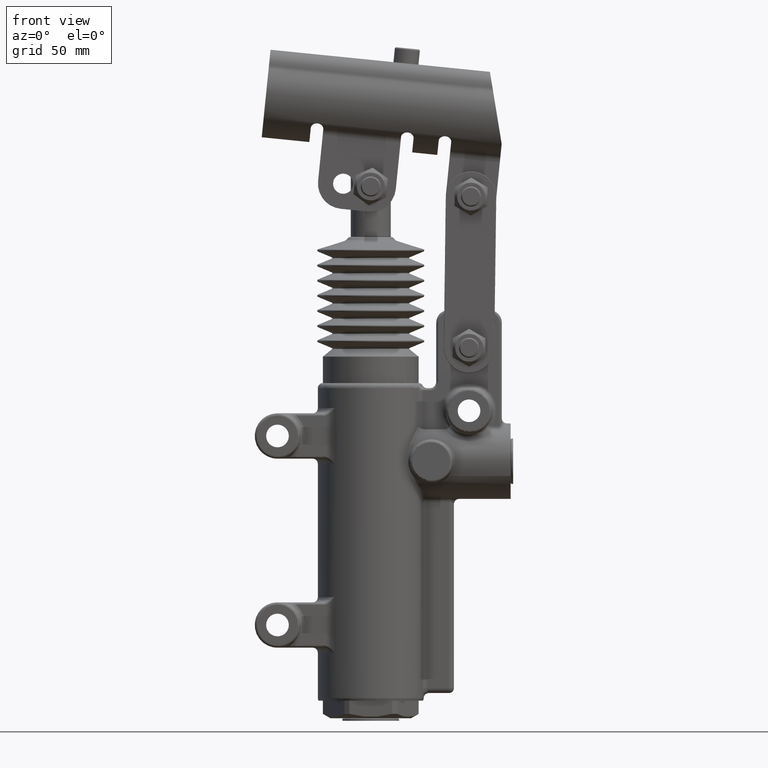
[diagram: clean part render]
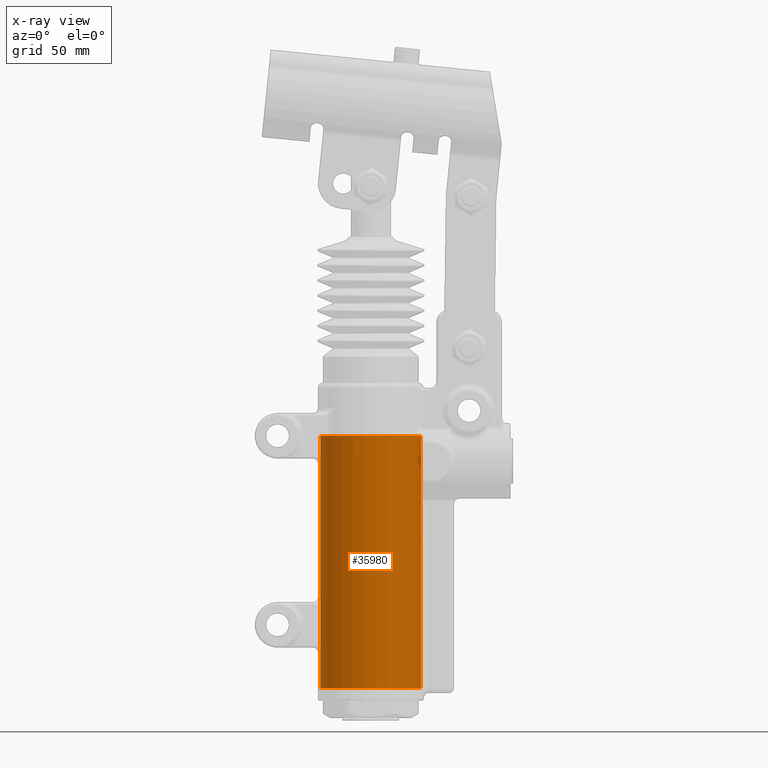
[diagram: x-ray — body ghosted, one internal face saturated and labeled with its STEP entity id]
A machine part, front view, then the same camera in x-ray: the body is ghosted and one INTERNAL B-rep face — a face not visible from any outside direction — is saturated and labeled: STEP entity #35980.
In plain terms, the highlighted cylindrical surface (bore or boss wall) has radius 20 mm, axis along (0, 0, -1).
Its self-contained STEP definition (entity closure, byte-faithful):
#35816=CARTESIAN_POINT('',(0.0,0.0,106.00000000000001));
#35817=DIRECTION('',(0.0,0.0,-1.0));
#35818=DIRECTION('',(1.0,0.0,0.0));
#35819=AXIS2_PLACEMENT_3D('',#35816,#35817,#35818);
#35820=CYLINDRICAL_SURFACE('',#35819,19.999999999999996);
#35821=CARTESIAN_POINT('',(-19.999999999999996,2.449294E-015,6.000000000000014));
#35822=VERTEX_POINT('',#35821);
#35823=CARTESIAN_POINT('',(0.0,0.0,6.000000000000014));
#35824=DIRECTION('',(0.0,0.0,-1.0));
#35825=DIRECTION('',(1.0,0.0,0.0));
#35826=AXIS2_PLACEMENT_3D('',#35823,#35824,#35825);
#35827=CIRCLE('',#35826,19.999999999999996);
#35828=EDGE_CURVE('',#35822,#35822,#35827,.T.);
#35829=ORIENTED_EDGE('',*,*,#35828,.T.);
#35830=EDGE_LOOP('',(#35829));
#35831=FACE_OUTER_BOUND('',#35830,.T.);
#35832=CARTESIAN_POINT('',(19.928640593644044,1.687982253864854,15.999999999999996));
#35833=VERTEX_POINT('',#35832);
#35834=CARTESIAN_POINT('',(19.928640593644044,1.687982253864854,23.000000000000007));
#35835=VERTEX_POINT('',#35834);
#35836=CARTESIAN_POINT('',(19.928640593644044,1.687982253864855,16.0));
#35837=DIRECTION('',(0.0,0.0,1.0));
#35838=VECTOR('',#35837,7.000000000000014);
#35839=LINE('',#35836,#35838);
#35840=EDGE_CURVE('',#35833,#35835,#35839,.T.);
#35841=ORIENTED_EDGE('',*,*,#35840,.F.);
#35842=CARTESIAN_POINT('',(19.811849500370659,2.73689959162967,15.0));
#35843=VERTEX_POINT('',#35842);
#35844=CARTESIAN_POINT('',(19.811849500370659,2.736899591629671,14.999999999999998));
#35845=CARTESIAN_POINT('',(19.829993222497915,2.605560943598487,15.0));
#35846=CARTESIAN_POINT('',(19.847953084231403,2.464940416124008,15.02548096789382));
#35847=CARTESIAN_POINT('',(19.878549440414993,2.204641702145498,15.12965323872862));
#35848=CARTESIAN_POINT('',(19.89125418640333,2.084974640357284,15.208352281640657));
#35849=CARTESIAN_POINT('',(19.909735388268345,1.900154675538171,15.387392436961449));
#35850=CARTESIAN_POINT('',(19.917021503706401,1.82073957048434,15.497885988396343));
#35851=CARTESIAN_POINT('',(19.926438698375495,1.714607530595788,15.741472535941892));
#35852=CARTESIAN_POINT('',(19.92864059364404,1.687982253864852,15.874602715031386));
#35853=CARTESIAN_POINT('',(19.92864059364404,1.68798225386485,15.999999999999996));
#35854=B_SPLINE_CURVE_WITH_KNOTS('',3,(#35844,#35845,#35846,#35847,#35848,#35849,#35850,#35851,#35852,#35853),.UNSPECIFIED.,.F.,.U.,(4,2,2,2,4),(0.153682060028716,0.193457846139567,0.233233632250417,0.270852817741,0.308472003231582),.UNSPECIFIED.);
#35855=EDGE_CURVE('',#35843,#35833,#35854,.T.);
#35856=ORIENTED_EDGE('',*,*,#35855,.F.);
#35857=CARTESIAN_POINT('',(16.432395451144465,11.400718386891528,15.0));
#35858=VERTEX_POINT('',#35857);
#35859=CARTESIAN_POINT('',(0.0,0.0,15.0));
#35860=DIRECTION('',(0.0,0.0,-1.0));
#35861=DIRECTION('',(1.0,0.0,0.0));
#35862=AXIS2_PLACEMENT_3D('',#35859,#35860,#35861);
#35863=CIRCLE('',#35862,19.999999999999996);
#35864=EDGE_CURVE('',#35858,#35843,#35863,.T.);
#35865=ORIENTED_EDGE('',*,*,#35864,.F.);
#35866=CARTESIAN_POINT('',(15.658229004202621,12.442663077169115,15.999999999999996));
#35867=VERTEX_POINT('',#35866);
#35868=CARTESIAN_POINT('',(15.658229004202621,12.442663077169115,15.999999999999996));
#35869=CARTESIAN_POINT('',(15.658229004202621,12.442663077169115,15.875046407289414));
#35870=CARTESIAN_POINT('',(15.678988080551907,12.416647289257597,15.745424728525229));
#35871=CARTESIAN_POINT('',(15.755202371108631,12.319796890307362,15.513121096328346));
#35872=CARTESIAN_POINT('',(15.810289276284763,12.249240358113497,15.410202662594017));
#35873=CARTESIAN_POINT('',(15.945008473015358,12.073629020129617,15.223843921999105));
#35874=CARTESIAN_POINT('',(16.038953539091537,11.949047341838257,15.138554092803361));
#35875=CARTESIAN_POINT('',(16.235811262943269,11.68016248357347,15.026570555950476));
#35876=CARTESIAN_POINT('',(16.338688753940666,11.535782288359693,15.000000000000002));
#35877=CARTESIAN_POINT('',(16.432395451144462,11.400718386891528,15.000000000000002));
#35878=B_SPLINE_CURVE_WITH_KNOTS('',3,(#35868,#35869,#35870,#35871,#35872,#35873,#35874,#35875,#35876,#35877),.UNSPECIFIED.,.F.,.U.,(4,2,2,2,4),(0.342962008815077,0.380448086628252,0.417934164441426,0.467250371029707,0.516566577617989),.UNSPECIFIED.);
#35879=EDGE_CURVE('',#35867,#35858,#35878,.T.);
#35880=ORIENTED_EDGE('',*,*,#35879,.F.);
#35881=CARTESIAN_POINT('',(15.658229004202621,12.442663077169115,23.000000000000007));
#35882=VERTEX_POINT('',#35881);
#35883=CARTESIAN_POINT('',(15.658229004202624,12.442663077169115,23.000000000000014));
#35884=DIRECTION('',(0.0,0.0,-1.0));
#35885=VECTOR('',#35884,7.000000000000014);
#35886=LINE('',#35883,#35885);
#35887=EDGE_CURVE('',#35882,#35867,#35886,.T.);
#35888=ORIENTED_EDGE('',*,*,#35887,.F.);
#35889=CARTESIAN_POINT('',(16.432395451144465,11.400718386891528,24.000000000000004));
#35890=VERTEX_POINT('',#35889);
#35891=CARTESIAN_POINT('',(16.432395451144462,11.40071838689153,24.0));
#35892=CARTESIAN_POINT('',(16.338688753940669,11.535782288359693,24.0));
#35893=CARTESIAN_POINT('',(16.235811262943272,11.680162483573469,23.973429444049525));
#35894=CARTESIAN_POINT('',(16.038953539091544,11.94904734183825,23.861445907196639));
#35895=CARTESIAN_POINT('',(15.945008473015365,12.073629020129616,23.776156078000898));
#35896=CARTESIAN_POINT('',(15.810289276284768,12.249240358113493,23.589797337405987));
#35897=CARTESIAN_POINT('',(15.755202371108636,12.319796890307352,23.48687890367167));
#35898=CARTESIAN_POINT('',(15.678988080551914,12.41664728925759,23.254575271474781));
#35899=CARTESIAN_POINT('',(15.658229004202619,12.442663077169112,23.12495359271059));
#35900=CARTESIAN_POINT('',(15.658229004202619,12.442663077169113,23.000000000000004));
#35901=B_SPLINE_CURVE_WITH_KNOTS('',3,(#35891,#35892,#35893,#35894,#35895,#35896,#35897,#35898,#35899,#35900),.UNSPECIFIED.,.F.,.U.,(4,2,2,2,4),(0.169228145449056,0.218544352037337,0.267860558625618,0.305346636438793,0.342832714251967),.UNSPECIFIED.);
#35902=EDGE_CURVE('',#35890,#35882,#35901,.T.);
#35903=ORIENTED_EDGE('',*,*,#35902,.F.);
#35904=CARTESIAN_POINT('',(19.811849500370659,2.736899591629671,24.000000000000004));
#35905=VERTEX_POINT('',#35904);
#35906=CARTESIAN_POINT('',(0.0,0.0,24.000000000000004));
#35907=DIRECTION('',(0.0,0.0,1.0));
#35908=DIRECTION('',(1.0,0.0,0.0));
#35909=AXIS2_PLACEMENT_3D('',#35906,#35907,#35908);
#35910=CIRCLE('',#35909,19.999999999999996);
#35911=EDGE_CURVE('',#35905,#35890,#35910,.T.);
#35912=ORIENTED_EDGE('',*,*,#35911,.F.);
#35913=CARTESIAN_POINT('',(19.92864059364404,1.687982253864852,23.000000000000004));
#35914=CARTESIAN_POINT('',(19.92864059364404,1.687982253864855,23.125397284968606));
#35915=CARTESIAN_POINT('',(19.926438698375492,1.714607530595792,23.258527464058119));
#35916=CARTESIAN_POINT('',(19.917021503706401,1.820739570484343,23.502114011603666));
#35917=CARTESIAN_POINT('',(19.909735388268349,1.900154675538175,23.612607563038537));
#35918=CARTESIAN_POINT('',(19.891254186403334,2.084974640357284,23.791647718359332));
#35919=CARTESIAN_POINT('',(19.878549440415,2.204641702145497,23.870346761271378));
#35920=CARTESIAN_POINT('',(19.847953084231406,2.464940416124005,23.97451903210618));
#35921=CARTESIAN_POINT('',(19.829993222497915,2.605560943598487,24.0));
#35922=CARTESIAN_POINT('',(19.811849500370659,2.736899591629671,24.0));
#35923=B_SPLINE_CURVE_WITH_KNOTS('',3,(#35913,#35914,#35915,#35916,#35917,#35918,#35919,#35920,#35921,#35922),.UNSPECIFIED.,.F.,.U.,(4,2,2,2,4),(-0.30847200323158,-0.270852817740998,-0.233233632250417,-0.193457846139566,-0.153682060028716),.UNSPECIFIED.);
#35924=EDGE_CURVE('',#35835,#35905,#35923,.T.);
#35925=ORIENTED_EDGE('',*,*,#35924,.F.);
#35926=EDGE_LOOP('',(#35841,#35856,#35865,#35880,#35888,#35903,#35912,#35925));
#35927=FACE_BOUND('',#35926,.T.);
#35928=CARTESIAN_POINT('',(18.54049621773915,-7.500000000000001,96.0));
#35929=VERTEX_POINT('',#35928);
#35930=CARTESIAN_POINT('',(18.54049621773915,-7.500000000000001,96.0));
#35931=CARTESIAN_POINT('',(18.54049621773915,-7.500000000000001,96.314323863477426));
#35932=CARTESIAN_POINT('',(18.566329727873995,-7.437040803119112,96.647589372892625));
#35933=CARTESIAN_POINT('',(18.66490098377308,-7.186073081963944,97.256831275376271));
#35934=CARTESIAN_POINT('',(18.737032376940626,-6.998219643066089,97.532969485754279));
#35935=CARTESIAN_POINT('',(18.894668518490469,-6.561102174921403,97.978646322070304));
#35936=CARTESIAN_POINT('',(18.991816149611545,-6.278274722638392,98.174718068091863));
#35937=CARTESIAN_POINT('',(19.185943323310084,-5.65733090203528,98.435426275172404));
#35938=CARTESIAN_POINT('',(19.2825340603863,-5.319066711446564,98.5));
#35939=CARTESIAN_POINT('',(19.445172657349701,-4.689170133956774,98.5));
#35940=CARTESIAN_POINT('',(19.522700453846387,-4.354768647996802,98.438397570180427));
#35941=CARTESIAN_POINT('',(19.650524235872364,-3.735872081191978,98.182678838511279));
#35942=CARTESIAN_POINT('',(19.701241939487474,-3.451514368891756,97.988441081135733));
#35943=CARTESIAN_POINT('',(19.773862153697589,-3.007292527197883,97.541432797164589));
#35944=CARTESIAN_POINT('',(19.801146557472634,-2.816198859249673,97.261492317742594));
#35945=CARTESIAN_POINT('',(19.835567315765211,-2.562547586816906,96.64743816560609));
#35946=CARTESIAN_POINT('',(19.843134832984425,-2.5,96.313344599513158));
#35947=CARTESIAN_POINT('',(19.843134832984425,-2.5,95.686655400486842));
#35948=CARTESIAN_POINT('',(19.835567315765211,-2.562547586816906,95.352561834393896));
#35949=CARTESIAN_POINT('',(19.801146557472634,-2.816198859249673,94.738507682257392));
#35950=CARTESIAN_POINT('',(19.773862153697589,-3.007292527197883,94.458567202835411));
#35951=CARTESIAN_POINT('',(19.701241939487474,-3.451514368891756,94.011558918864253));
#35952=CARTESIAN_POINT('',(19.650524235872361,-3.735872081191978,93.817321161488707));
#35953=CARTESIAN_POINT('',(19.522700453846383,-4.354768647996802,93.561602429819573));
#35954=CARTESIAN_POINT('',(19.445172657349701,-4.689170133956774,93.5));
#35955=CARTESIAN_POINT('',(19.2825340603863,-5.319066711446563,93.5));
#35956=CARTESIAN_POINT('',(19.185943323310084,-5.65733090203528,93.564573724827582));
#35957=CARTESIAN_POINT('',(18.991816149611548,-6.278274722638392,93.825281931908137));
#35958=CARTESIAN_POINT('',(18.894668518490466,-6.561102174921402,94.021353677929682));
#35959=CARTESIAN_POINT('',(18.737032376940626,-6.998219643066089,94.467030514245707));
#35960=CARTESIAN_POINT('',(18.66490098377308,-7.186073081963944,94.743168724623729));
#35961=CARTESIAN_POINT('',(18.566329727873995,-7.437040803119112,95.352410627107375));
#35962=CARTESIAN_POINT('',(18.540496217739154,-7.499999999999998,95.685676136522559));
#35963=CARTESIAN_POINT('',(18.540496217739154,-7.499999999999998,96.0));
#35964=B_SPLINE_CURVE_WITH_KNOTS('',3,(#35930,#35931,#35932,#35933,#35934,#35935,#35936,#35937,#35938,#35939,#35940,#35941,#35942,#35943,#35944,#35945,#35946,#35947,#35948,#35949,#35950,#35951,#35952,#35953,#35954,#35955,#35956,#35957,#35958,#35959,#35960,#35961,#35962,#35963),.UNSPECIFIED.,.T.,.U.,(4,2,2,2,2,2,2,2,2,2,2,2,2,2,2,2,4),(0.0,0.094297159043228,0.188594318086457,0.287453522867394,0.38631272764833,0.482619839223474,0.578926950798618,0.672930330652561,0.766933710506504,0.860937090360447,0.95494047021439,1.051247581789534,1.147554693364677,1.246413898145614,1.345273102926551,1.439570261969779,1.533867421013007),.UNSPECIFIED.);
#35965=EDGE_CURVE('',#35929,#35929,#35964,.T.);
#35966=ORIENTED_EDGE('',*,*,#35965,.F.);
#35967=EDGE_LOOP('',(#35966));
#35968=FACE_BOUND('',#35967,.T.);
#35969=CARTESIAN_POINT('',(-19.999999999999996,2.449294E-015,106.00000000000001));
#35970=VERTEX_POINT('',#35969);
#35971=CARTESIAN_POINT('',(0.0,0.0,106.00000000000001));
#35972=DIRECTION('',(0.0,0.0,1.0));
#35973=DIRECTION('',(1.0,0.0,0.0));
#35974=AXIS2_PLACEMENT_3D('',#35971,#35972,#35973);
#35975=CIRCLE('',#35974,19.999999999999996);
#35976=EDGE_CURVE('',#35970,#35970,#35975,.T.);
#35977=ORIENTED_EDGE('',*,*,#35976,.T.);
#35978=EDGE_LOOP('',(#35977));
#35979=FACE_BOUND('',#35978,.T.);
#35980=ADVANCED_FACE('',(#35831,#35927,#35968,#35979),#35820,.F.);